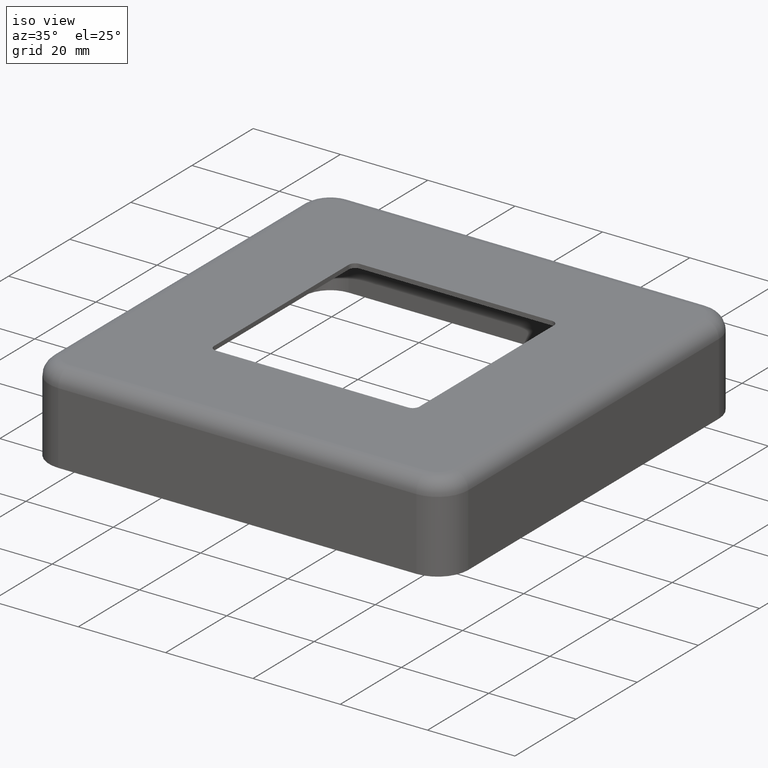
[diagram: clean part render]
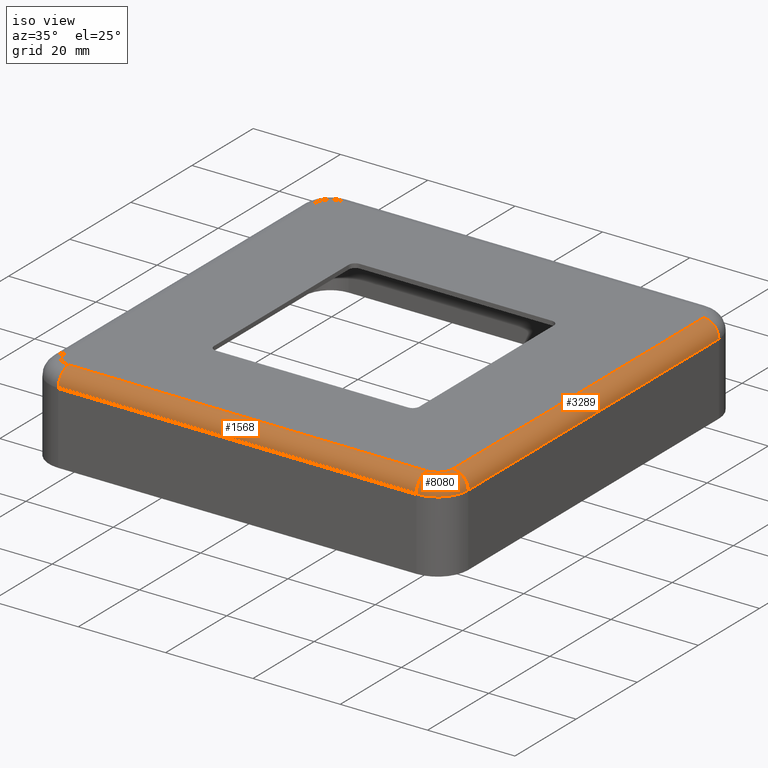
[diagram: same view with one multi-face feature highlighted, each face labeled with its STEP entity id]
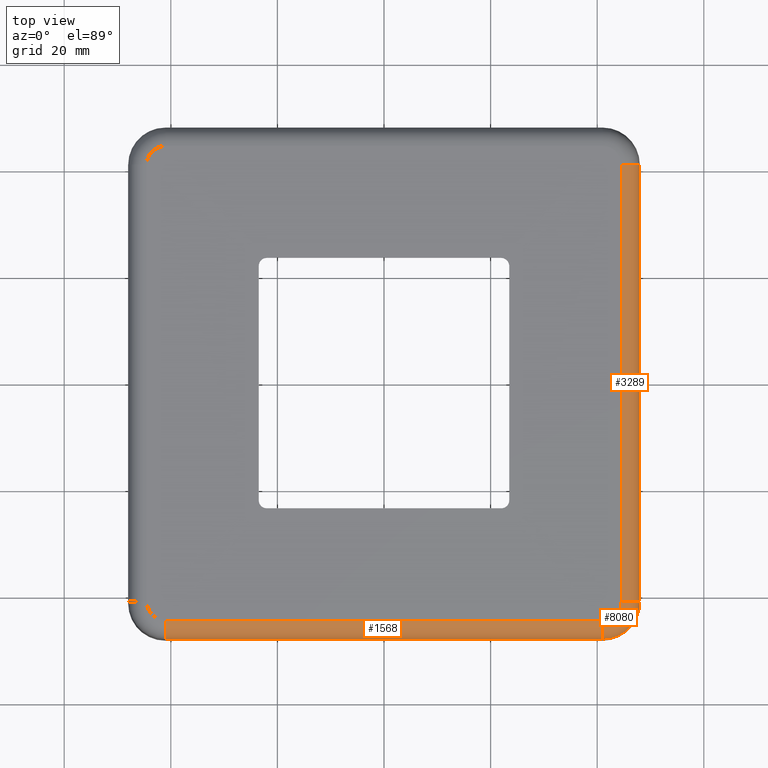
[diagram: same view with one multi-face feature highlighted, each face labeled with its STEP entity id]
A machine part, iso view. The highlighted faces form ONE feature: a constant-radius fillet chain: 3 tangent blend faces with common blend radius 3.5 mm. The faces share edges in the B-rep.
A second angle (top view) of the same feature is appended — it is thin or edge-on in the first view.
Their STEP definitions:
[1] entity #1568 (Cylinder):
#767 = CARTESIAN_POINT ( 'NONE',  ( 0.000000000000000000, -44.50000000000000711, 16.50000000000000000 ) ) ;
#1092 = EDGE_CURVE ( 'NONE', #10643, #3615, #10156, .T. ) ;
#1172 = DIRECTION ( 'NONE',  ( 1.000000000000000000, -0.000000000000000000, 0.000000000000000000 ) ) ;
#1246 = ORIENTED_EDGE ( 'NONE', *, *, #3950, .F. ) ;
#1446 = ORIENTED_EDGE ( 'NONE', *, *, #1092, .T. ) ;
#1568 = ADVANCED_FACE ( 'NONE', ( #10870 ), #8353, .T. ) ;
#1925 = VERTEX_POINT ( 'NONE', #4030 ) ;
#3165 = DIRECTION ( 'NONE',  ( 0.000000000000000000, 0.000000000000000000, 1.000000000000000000 ) ) ;
#3323 = AXIS2_PLACEMENT_3D ( 'NONE', #3328, #10374, #6999 ) ;
#3328 = CARTESIAN_POINT ( 'NONE',  ( 41.00000000000000000, -44.50000000000000711, 16.50000000000000000 ) ) ;
#3466 = EDGE_LOOP ( 'NONE', ( #1246, #11809, #7185, #1446 ) ) ;
#3615 = VERTEX_POINT ( 'NONE', #4485 ) ;
#3950 = EDGE_CURVE ( 'NONE', #1925, #3615, #5766, .T. ) ;
#4030 = CARTESIAN_POINT ( 'NONE',  ( 40.99999999999999289, -48.00000000000000711, 16.50000000000000000 ) ) ;
#4139 = AXIS2_PLACEMENT_3D ( 'NONE', #9741, #5180, #6299 ) ;
#4203 = CARTESIAN_POINT ( 'NONE',  ( -40.99999999999999289, -44.50000000000000711, 20.00000000000000000 ) ) ;
#4485 = CARTESIAN_POINT ( 'NONE',  ( -41.00000000000000000, -48.00000000000000711, 16.50000000000000000 ) ) ;
#5180 = DIRECTION ( 'NONE',  ( 1.000000000000000000, 0.000000000000000000, -0.000000000000000000 ) ) ;
#5766 = LINE ( 'NONE', #10082, #11537 ) ;
#6299 = DIRECTION ( 'NONE',  ( 0.000000000000000000, 0.000000000000000000, -1.000000000000000000 ) ) ;
#6999 = DIRECTION ( 'NONE',  ( 0.000000000000000000, 0.000000000000000000, 1.000000000000000000 ) ) ;
#7185 = ORIENTED_EDGE ( 'NONE', *, *, #13520, .F. ) ;
#7813 = CARTESIAN_POINT ( 'NONE',  ( 41.00000000000000000, -44.50000000000000711, 20.00000000000000000 ) ) ;
#8353 = CYLINDRICAL_SURFACE ( 'NONE', #10440, 3.499999999999999556 ) ;
#9063 = CARTESIAN_POINT ( 'NONE',  ( 48.00000000000000000, -44.50000000000000711, 20.00000000000000000 ) ) ;
#9064 = VERTEX_POINT ( 'NONE', #7813 ) ;
#9116 = VECTOR ( 'NONE', #1172, 1000.000000000000000 ) ;
#9741 = CARTESIAN_POINT ( 'NONE',  ( -41.00000000000000000, -44.50000000000000711, 16.50000000000000000 ) ) ;
#10082 = CARTESIAN_POINT ( 'NONE',  ( -48.00000000000000000, -48.00000000000000711, 16.50000000000000000 ) ) ;
#10156 = CIRCLE ( 'NONE', #4139, 3.499999999999999556 ) ;
#10182 = DIRECTION ( 'NONE',  ( -1.000000000000000000, 0.000000000000000000, -0.000000000000000000 ) ) ;
#10349 = EDGE_CURVE ( 'NONE', #1925, #9064, #11497, .T. ) ;
#10374 = DIRECTION ( 'NONE',  ( -1.000000000000000000, 0.000000000000000000, 0.000000000000000000 ) ) ;
#10440 = AXIS2_PLACEMENT_3D ( 'NONE', #767, #13304, #3165 ) ;
#10643 = VERTEX_POINT ( 'NONE', #4203 ) ;
#10870 = FACE_OUTER_BOUND ( 'NONE', #3466, .T. ) ;
#11497 = CIRCLE ( 'NONE', #3323, 3.499999999999999556 ) ;
#11537 = VECTOR ( 'NONE', #10182, 1000.000000000000000 ) ;
#11809 = ORIENTED_EDGE ( 'NONE', *, *, #10349, .T. ) ;
#13304 = DIRECTION ( 'NONE',  ( -1.000000000000000000, 0.000000000000000000, -0.000000000000000000 ) ) ;
#13520 = EDGE_CURVE ( 'NONE', #10643, #9064, #14150, .T. ) ;
#14150 = LINE ( 'NONE', #9063, #9116 ) ;
[2] entity #8080 (Torus):
#425 = ORIENTED_EDGE ( 'NONE', *, *, #13165, .F. ) ;
#572 = AXIS2_PLACEMENT_3D ( 'NONE', #12131, #11191, #2063 ) ;
#1571 = CIRCLE ( 'NONE', #572, 6.999999999999999112 ) ;
#1925 = VERTEX_POINT ( 'NONE', #4030 ) ;
#2063 = DIRECTION ( 'NONE',  ( 1.000000000000000000, 0.000000000000000000, 0.000000000000000000 ) ) ;
#2118 = CARTESIAN_POINT ( 'NONE',  ( 41.00000000000000000, -41.00000000000000000, 16.50000000000000000 ) ) ;
#2127 = CARTESIAN_POINT ( 'NONE',  ( 44.50000000000000000, -41.00000000000000000, 20.00000000000000000 ) ) ;
#2730 = DIRECTION ( 'NONE',  ( 0.000000000000000000, 1.000000000000000000, 0.000000000000000000 ) ) ;
#3323 = AXIS2_PLACEMENT_3D ( 'NONE', #3328, #10374, #6999 ) ;
#3328 = CARTESIAN_POINT ( 'NONE',  ( 41.00000000000000000, -44.50000000000000711, 16.50000000000000000 ) ) ;
#4030 = CARTESIAN_POINT ( 'NONE',  ( 40.99999999999999289, -48.00000000000000711, 16.50000000000000000 ) ) ;
#4253 = EDGE_CURVE ( 'NONE', #9828, #9064, #10463, .T. ) ;
#4679 = TOROIDAL_SURFACE ( 'NONE', #7074, 3.500000000000000000, 3.500000000000000000 ) ;
#4816 = EDGE_LOOP ( 'NONE', ( #425, #13569, #11019, #9145 ) ) ;
#5845 = CIRCLE ( 'NONE', #9894, 3.499999999999999556 ) ;
#6044 = VERTEX_POINT ( 'NONE', #7552 ) ;
#6999 = DIRECTION ( 'NONE',  ( 0.000000000000000000, 0.000000000000000000, 1.000000000000000000 ) ) ;
#7074 = AXIS2_PLACEMENT_3D ( 'NONE', #2118, #11245, #13597 ) ;
#7343 = DIRECTION ( 'NONE',  ( 1.000000000000000000, 0.000000000000000000, 0.000000000000000000 ) ) ;
#7552 = CARTESIAN_POINT ( 'NONE',  ( 48.00000000000000000, -41.00000000000000000, 16.50000000000000000 ) ) ;
#7813 = CARTESIAN_POINT ( 'NONE',  ( 41.00000000000000000, -44.50000000000000711, 20.00000000000000000 ) ) ;
#8080 = ADVANCED_FACE ( 'NONE', ( #14596 ), #4679, .T. ) ;
#9064 = VERTEX_POINT ( 'NONE', #7813 ) ;
#9145 = ORIENTED_EDGE ( 'NONE', *, *, #14160, .T. ) ;
#9828 = VERTEX_POINT ( 'NONE', #2127 ) ;
#9894 = AXIS2_PLACEMENT_3D ( 'NONE', #13032, #2730, #10634 ) ;
#10349 = EDGE_CURVE ( 'NONE', #1925, #9064, #11497, .T. ) ;
#10374 = DIRECTION ( 'NONE',  ( -1.000000000000000000, 0.000000000000000000, 0.000000000000000000 ) ) ;
#10463 = CIRCLE ( 'NONE', #11598, 3.500000000000003109 ) ;
#10634 = DIRECTION ( 'NONE',  ( 0.000000000000000000, 0.000000000000000000, 1.000000000000000000 ) ) ;
#11019 = ORIENTED_EDGE ( 'NONE', *, *, #10349, .F. ) ;
#11191 = DIRECTION ( 'NONE',  ( -0.000000000000000000, 0.000000000000000000, 1.000000000000000000 ) ) ;
#11245 = DIRECTION ( 'NONE',  ( -0.000000000000000000, 0.000000000000000000, 1.000000000000000000 ) ) ;
#11497 = CIRCLE ( 'NONE', #3323, 3.499999999999999556 ) ;
#11598 = AXIS2_PLACEMENT_3D ( 'NONE', #14282, #14329, #7343 ) ;
#12131 = CARTESIAN_POINT ( 'NONE',  ( 41.00000000000000000, -41.00000000000000000, 16.50000000000000000 ) ) ;
#13032 = CARTESIAN_POINT ( 'NONE',  ( 44.50000000000000000, -41.00000000000000000, 16.50000000000000000 ) ) ;
#13165 = EDGE_CURVE ( 'NONE', #9828, #6044, #5845, .T. ) ;
#13569 = ORIENTED_EDGE ( 'NONE', *, *, #4253, .T. ) ;
#13597 = DIRECTION ( 'NONE',  ( 1.000000000000000000, 0.000000000000000000, 0.000000000000000000 ) ) ;
#14160 = EDGE_CURVE ( 'NONE', #1925, #6044, #1571, .T. ) ;
#14282 = CARTESIAN_POINT ( 'NONE',  ( 41.00000000000000000, -41.00000000000000000, 20.00000000000000000 ) ) ;
#14329 = DIRECTION ( 'NONE',  ( 0.000000000000000000, -0.000000000000000000, -1.000000000000000000 ) ) ;
#14596 = FACE_OUTER_BOUND ( 'NONE', #4816, .T. ) ;
[3] entity #3289 (Cylinder):
#19 = CARTESIAN_POINT ( 'NONE',  ( 47.99999999999998579, 40.99999999999998579, 16.50000000000000000 ) ) ;
#372 = DIRECTION ( 'NONE',  ( 1.000000000000000000, 1.445602896647337191E-16, 0.000000000000000000 ) ) ;
#1656 = DIRECTION ( 'NONE',  ( -1.445602896647339163E-16, 1.000000000000000000, -0.000000000000000000 ) ) ;
#1907 = CARTESIAN_POINT ( 'NONE',  ( 44.49999999999998579, 40.99999999999999289, 20.00000000000000000 ) ) ;
#2127 = CARTESIAN_POINT ( 'NONE',  ( 44.50000000000000000, -41.00000000000000000, 20.00000000000000000 ) ) ;
#2569 = DIRECTION ( 'NONE',  ( 0.000000000000000000, -1.000000000000000000, 0.000000000000000000 ) ) ;
#2730 = DIRECTION ( 'NONE',  ( 0.000000000000000000, 1.000000000000000000, 0.000000000000000000 ) ) ;
#3215 = AXIS2_PLACEMENT_3D ( 'NONE', #10620, #10674, #372 ) ;
#3289 = ADVANCED_FACE ( 'NONE', ( #9042 ), #3449, .T. ) ;
#3449 = CYLINDRICAL_SURFACE ( 'NONE', #3215, 3.500000000000003109 ) ;
#3704 = EDGE_CURVE ( 'NONE', #9828, #14157, #4345, .T. ) ;
#4159 = EDGE_CURVE ( 'NONE', #13036, #14157, #9215, .T. ) ;
#4345 = LINE ( 'NONE', #8416, #7420 ) ;
#4568 = EDGE_LOOP ( 'NONE', ( #14424, #9211, #13953, #11324 ) ) ;
#5084 = DIRECTION ( 'NONE',  ( 1.445602896647339163E-16, -1.000000000000000000, -0.000000000000000000 ) ) ;
#5426 = AXIS2_PLACEMENT_3D ( 'NONE', #9465, #2569, #6074 ) ;
#5845 = CIRCLE ( 'NONE', #9894, 3.499999999999999556 ) ;
#6042 = VECTOR ( 'NONE', #5084, 1000.000000000000000 ) ;
#6044 = VERTEX_POINT ( 'NONE', #7552 ) ;
#6074 = DIRECTION ( 'NONE',  ( 0.000000000000000000, 0.000000000000000000, -1.000000000000000000 ) ) ;
#7420 = VECTOR ( 'NONE', #1656, 1000.000000000000000 ) ;
#7552 = CARTESIAN_POINT ( 'NONE',  ( 48.00000000000000000, -41.00000000000000000, 16.50000000000000000 ) ) ;
#8412 = CARTESIAN_POINT ( 'NONE',  ( 48.00000000000000000, -48.00000000000000711, 16.50000000000000000 ) ) ;
#8416 = CARTESIAN_POINT ( 'NONE',  ( 44.49999999999998579, 47.99999999999999289, 20.00000000000000000 ) ) ;
#9042 = FACE_OUTER_BOUND ( 'NONE', #4568, .T. ) ;
#9211 = ORIENTED_EDGE ( 'NONE', *, *, #4159, .T. ) ;
#9215 = CIRCLE ( 'NONE', #5426, 3.499999999999999556 ) ;
#9465 = CARTESIAN_POINT ( 'NONE',  ( 44.49999999999998579, 40.99999999999999289, 16.50000000000000000 ) ) ;
#9658 = LINE ( 'NONE', #8412, #6042 ) ;
#9828 = VERTEX_POINT ( 'NONE', #2127 ) ;
#9894 = AXIS2_PLACEMENT_3D ( 'NONE', #13032, #2730, #10634 ) ;
#10620 = CARTESIAN_POINT ( 'NONE',  ( 44.49999999999999289, 6.432932890080657538E-15, 16.50000000000000000 ) ) ;
#10634 = DIRECTION ( 'NONE',  ( 0.000000000000000000, 0.000000000000000000, 1.000000000000000000 ) ) ;
#10674 = DIRECTION ( 'NONE',  ( 1.445602896647339163E-16, -1.000000000000000000, 0.000000000000000000 ) ) ;
#11324 = ORIENTED_EDGE ( 'NONE', *, *, #13165, .T. ) ;
#13032 = CARTESIAN_POINT ( 'NONE',  ( 44.50000000000000000, -41.00000000000000000, 16.50000000000000000 ) ) ;
#13036 = VERTEX_POINT ( 'NONE', #19 ) ;
#13165 = EDGE_CURVE ( 'NONE', #9828, #6044, #5845, .T. ) ;
#13223 = EDGE_CURVE ( 'NONE', #13036, #6044, #9658, .T. ) ;
#13953 = ORIENTED_EDGE ( 'NONE', *, *, #3704, .F. ) ;
#14157 = VERTEX_POINT ( 'NONE', #1907 ) ;
#14424 = ORIENTED_EDGE ( 'NONE', *, *, #13223, .F. ) ;